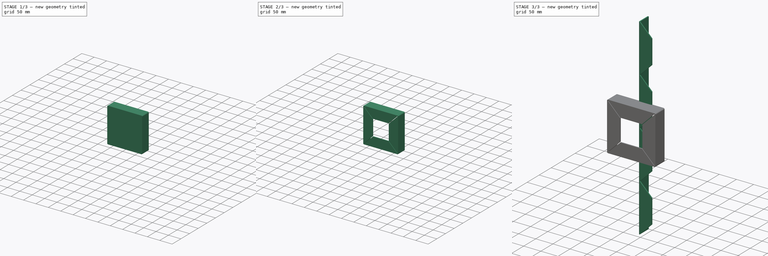
[diagram: build sequence overview — one tinted view per stage of 3, left to right]
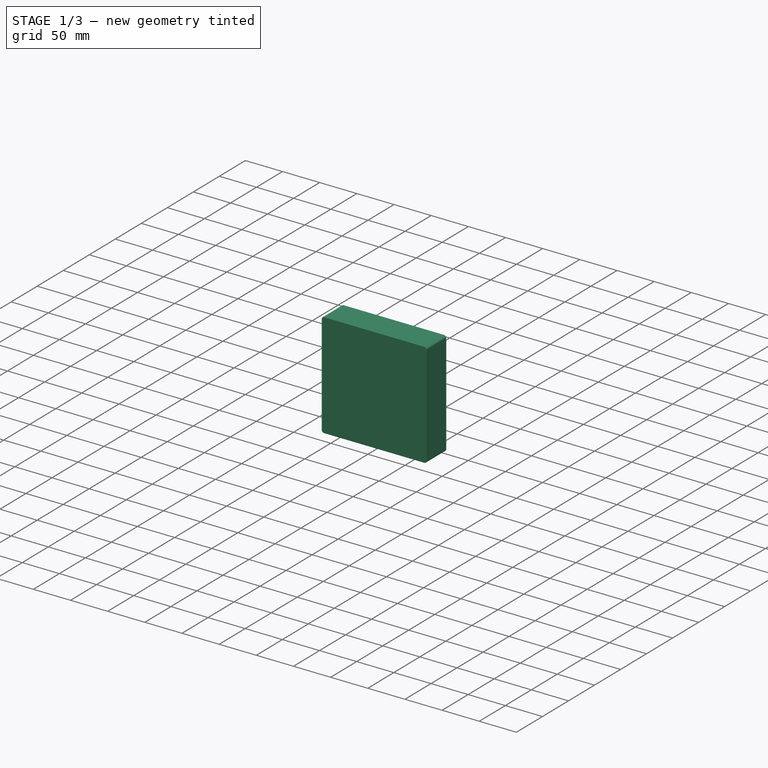
[diagram: stage 1 of 3 — iso view after this stage's code; geometry added in this stage tinted green]
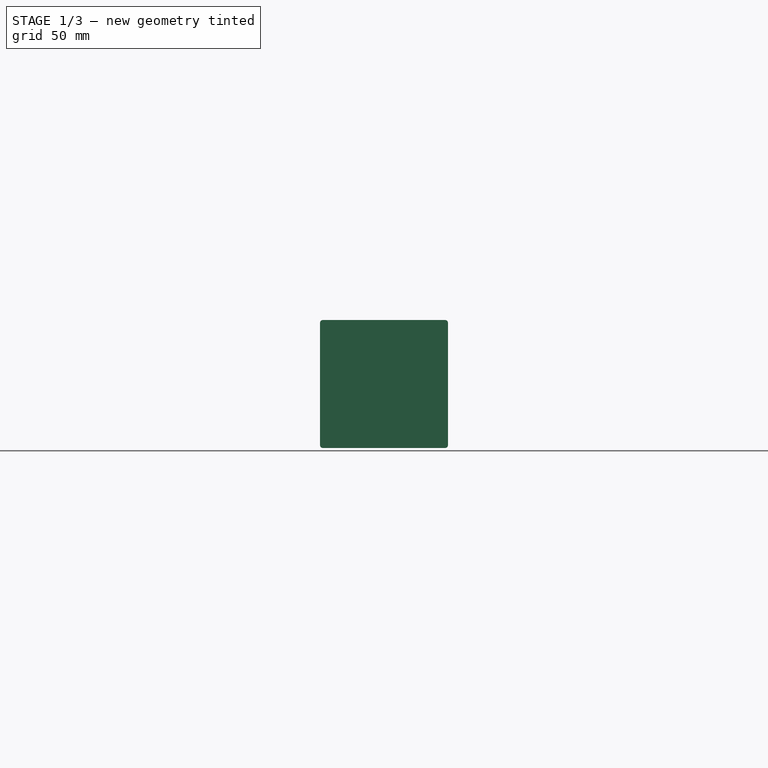
[diagram: stage 1 of 3 — front view after this stage's code; geometry added in this stage tinted green]
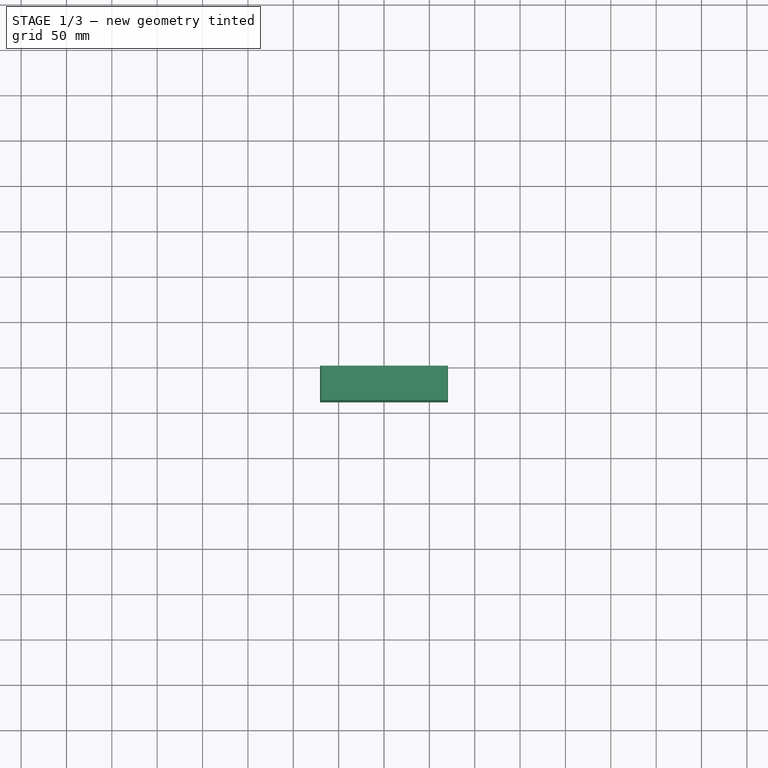
[diagram: stage 1 of 3 — top view after this stage's code; geometry added in this stage tinted green]
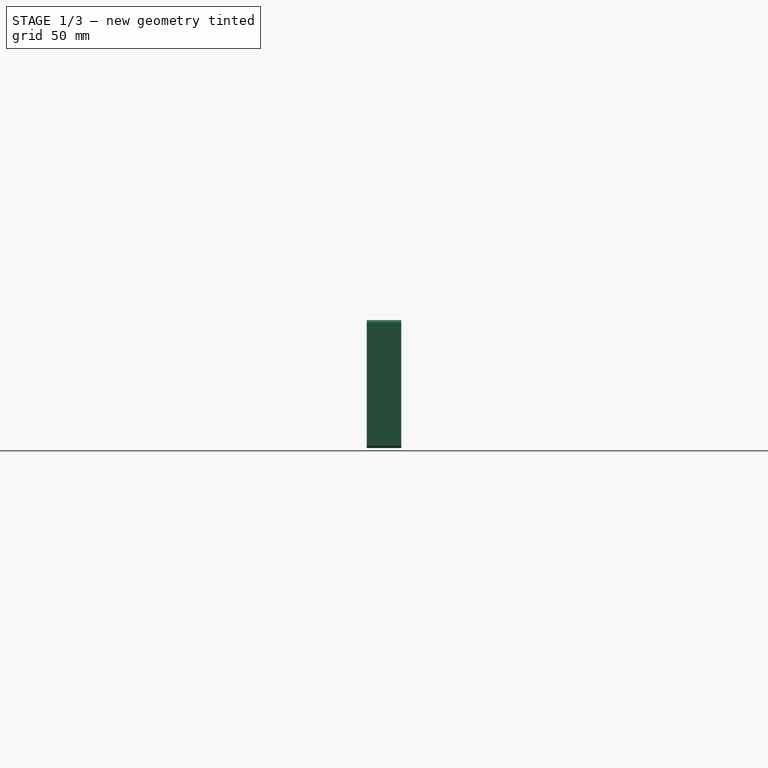
[diagram: stage 1 of 3 — right view after this stage's code; geometry added in this stage tinted green]
FCSTD DOCUMENT  (FreeCAD 0.18R16131 (Git))
Label: CardboardProtection
License: All rights reserved
LicenseURL: http://en.wikipedia.org/wiki/All_rights_reserved
objects: Sketcher::SketchObject×5, PartDesign::Pocket×3, PartDesign::Pad×2, PartDesign::Body×2, PartDesign::PolarPattern×1
note: 18 computed .brp shape members not serialized (recipe doc carries the construction recipe); baked Part::Feature solids carry a one-line shape summary decoded from their .brp

FEATURE [PartDesign::Body] Body
  Group = -> [Sketch,Pad,Sketch001,Pocket]
  Origin = -> Origin
  Placement = pos=(-200,0,0) rot=(0,0,1;0rad)
  Tip = -> Pocket
FEATURE [Sketcher::SketchObject] Sketch002
  MapMode = 5
  Placement = pos=(0,0,0) rot=(1,0,0;1.5708rad)
  Support = -> [XZ_Plane001]
  sketch-geometry (11):
    g0: LineSegment StartX=-67.5 StartY=70.5 StartZ=0 EndX=67.5 EndY=70.5 EndZ=0
    g1: LineSegment StartX=70.5 StartY=67.5 StartZ=0 EndX=70.5 EndY=-67.5 EndZ=0
    g2: LineSegment StartX=67.5 StartY=-70.5 StartZ=0 EndX=-67.5 EndY=-70.5 EndZ=0
    g3: LineSegment StartX=-70.5 StartY=-67.5 StartZ=0 EndX=-70.5 EndY=67.5 EndZ=0
    g4: LineSegment [constr] StartX=-67.5 StartY=67.5 StartZ=0 EndX=0 EndY=0 EndZ=0
    g5: LineSegment [constr] StartX=0 StartY=0 StartZ=0 EndX=67.5 EndY=67.5 EndZ=0
    g6: LineSegment [constr] StartX=0 StartY=0 StartZ=0 EndX=-67.5 EndY=-67.5 EndZ=0
    g7: ArcOfCircle CenterX=-67.5 CenterY=67.5 CenterZ=0 NormalX=0 NormalY=0 NormalZ=1 AngleXU=0 Radius=3 StartAngle=1.5708 EndAngle=3.14159
    g8: ArcOfCircle CenterX=-67.5 CenterY=-67.5 CenterZ=0 NormalX=0 NormalY=0 NormalZ=1 AngleXU=0 Radius=3 StartAngle=3.14159 EndAngle=4.71239
    g9: ArcOfCircle CenterX=67.5 CenterY=-67.5 CenterZ=0 NormalX=0 NormalY=0 NormalZ=1 AngleXU=0 Radius=3 StartAngle=4.71239 EndAngle=6.28319
    g10: ArcOfCircle CenterX=67.5 CenterY=67.5 CenterZ=0 NormalX=0 NormalY=0 NormalZ=1 AngleXU=0 Radius=3 StartAngle=2.98475e-11 EndAngle=1.5708
  constraints (27):
    c: Horizontal(g0)
    c: Horizontal(g2)
    c: Vertical(g1)
    c: Vertical(g3)
    c: Equal(g0,g3)
    c: Coincident(g4,g-1)
    c: Coincident(g5,g-1)
    c: Coincident(g6,g-1)
    c: Equal(g6,g4)
    c: Equal(g4,g5)
    c: Tangent(g0,g7) = 1.5708
    c: Tangent(g3,g7) = 1.5708
    c: Tangent(g3,g8) = 1.5708
    c: Tangent(g2,g8) = 1.5708
    c: Tangent(g2,g9) = 1.5708
    c: Tangent(g1,g9) = 1.5708
    c: Tangent(g1,g10) = 1.5708
    c: Tangent(g0,g10) = 1.5708
    c: Coincident(g4,g7)
    c: Coincident(g5,g10)
    c: Coincident(g6,g8)
    c: Equal(g0,g3)
    c: Equal(g7,g10)
    c: Equal(g10,g9)
    c: Equal(g9,g8)
    c: DistanceX(g7,g10) = 135
    c: Radius(g7) = 3
FEATURE [PartDesign::Pad] Pad001
  Length = 38
  Length2 = 100
  Placement = pos=(0,0,0) rot=(1,0,0;1.5708rad)
  Profile = -> Sketch002
  Type = 0
FEATURE [Sketcher::SketchObject] Sketch003
  MapMode = 5
  Placement = pos=(0,0,0) rot=(-1,0,0;1.5708rad)
  Support = -> [Pad001]
  sketch-geometry (5):
    g0: LineSegment StartX=-67.5 StartY=67.5 StartZ=0 EndX=-67.5 EndY=-67.5 EndZ=0
    g1: LineSegment StartX=-67.5 StartY=-67.5 StartZ=0 EndX=67.5 EndY=-67.5 EndZ=0
    g2: LineSegment StartX=67.5 StartY=-67.5 StartZ=0 EndX=67.5 EndY=67.5 EndZ=0
    g3: LineSegment StartX=67.5 StartY=67.5 StartZ=0 EndX=-67.5 EndY=67.5 EndZ=0
    g4: Circle [constr] CenterX=0 CenterY=0 CenterZ=0 NormalX=0 NormalY=0 NormalZ=1 AngleXU=0 Radius=95.4594
  constraints (14):
    c: Coincident(g0,g1)
    c: Coincident(g1,g2)
    c: Coincident(g2,g3)
    c: Coincident(g3,g0)
    c: Equal(g0,g1)
    c: Equal(g0,g2)
    c: Equal(g0,g3)
    c: PointOnObject(g0,g4)
    c: PointOnObject(g1,g4)
    c: PointOnObject(g2,g4)
    c: PointOnObject(g3,g4)
    c: Coincident(g4,g-1)
    c: Horizontal(g3)
    c: DistanceX(g3,g3) = 135
FEATURE [PartDesign::Pocket] Pocket001
  BaseFeature = -> Pad001
  Length = 35
  Length2 = 100
  Placement = pos=(0,0,0) rot=(1,0,0;1.5708rad)
  Profile = -> Sketch003
  Type = 0
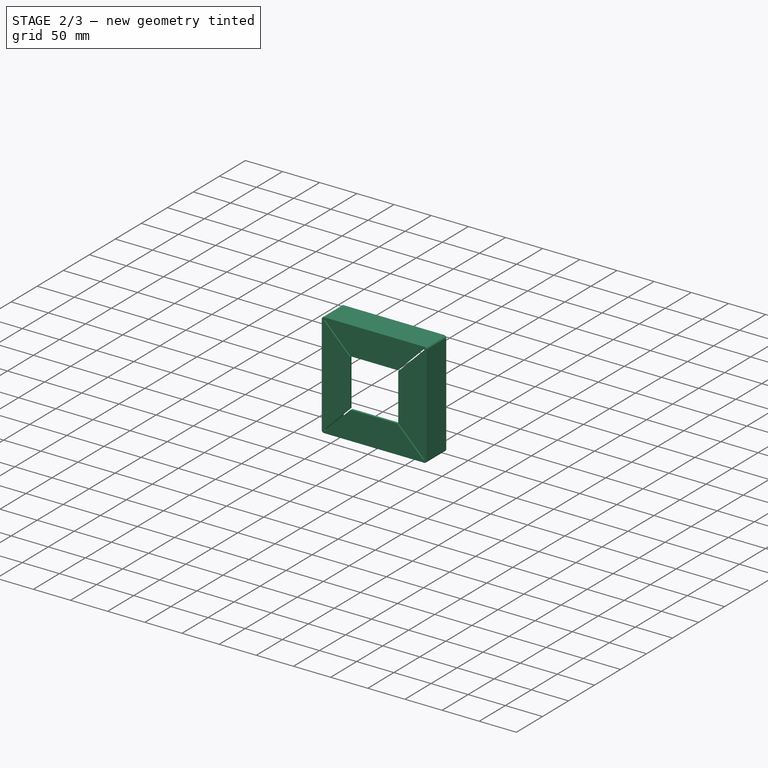
[diagram: stage 2 of 3 — iso view after this stage's code; geometry added in this stage tinted green]
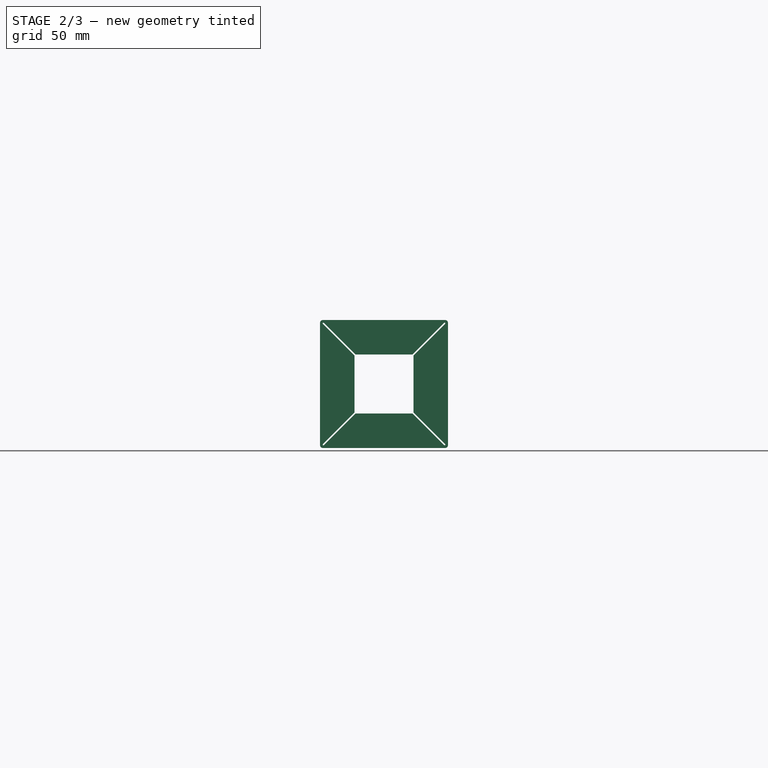
[diagram: stage 2 of 3 — front view after this stage's code; geometry added in this stage tinted green]
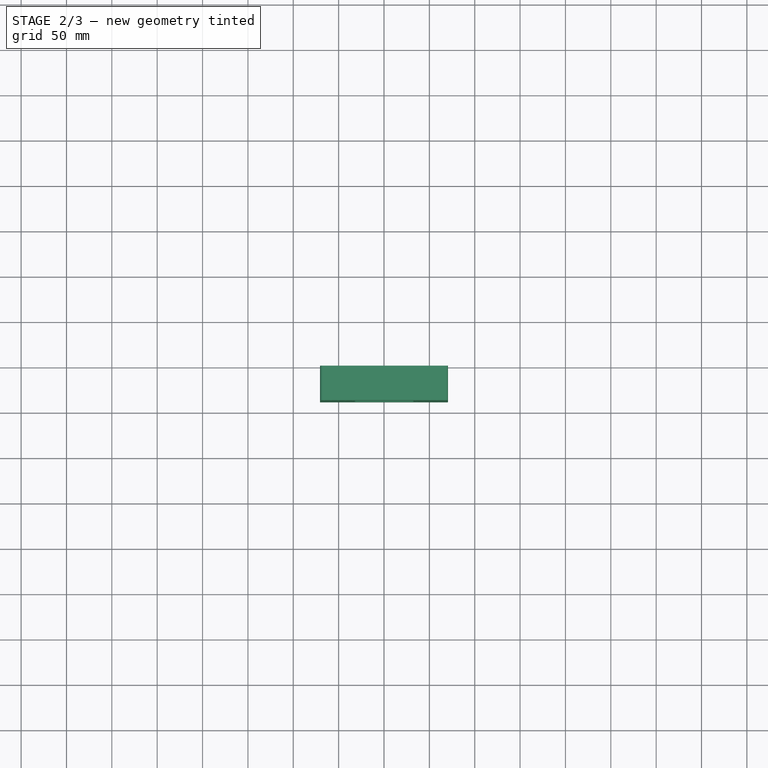
[diagram: stage 2 of 3 — top view after this stage's code; geometry added in this stage tinted green]
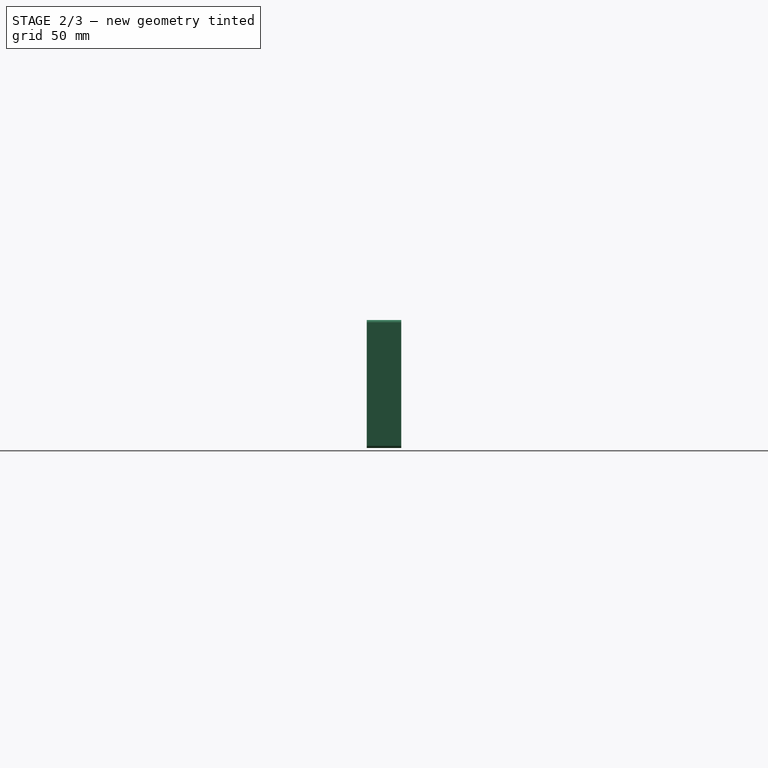
[diagram: stage 2 of 3 — right view after this stage's code; geometry added in this stage tinted green]
FEATURE [Sketcher::SketchObject] Sketch004
  ExternalGeometry = -> [Pocket001]
  MapMode = 5
  Placement = pos=(0,-35,3.12e-14) rot=(-1,0,0;1.5708rad)
  Support = -> [Pocket001]
  sketch-geometry (8):
    g0: LineSegment StartX=0 StartY=0 StartZ=0 EndX=0 EndY=32.5 EndZ=0
    g1: LineSegment StartX=0 StartY=32.5 StartZ=0 EndX=-31.5 EndY=32.5 EndZ=0
    g2: LineSegment StartX=-31.5 StartY=32.5 StartZ=0 EndX=-66.5 EndY=67.5 EndZ=0
    g3: LineSegment StartX=-66.5 StartY=67.5 StartZ=0 EndX=-67.5 EndY=67.5 EndZ=0
    g4: LineSegment StartX=-67.5 StartY=67.5 StartZ=0 EndX=-67.5 EndY=66.5 EndZ=0
    g5: LineSegment StartX=-67.5 StartY=66.5 StartZ=0 EndX=-32.5 EndY=31.5 EndZ=0
    g6: LineSegment StartX=-32.5 StartY=31.5 StartZ=0 EndX=-32.5 EndY=0 EndZ=0
    g7: LineSegment StartX=-32.5 StartY=0 StartZ=0 EndX=0 EndY=0 EndZ=0
  constraints (22):
    c: Coincident(g-1,g0)
    c: PointOnObject(g0,g-2)
    c: Coincident(g0,g1)
    c: Horizontal(g1)
    c: Coincident(g1,g2)
    c: Coincident(g2,g3)
    c: Horizontal(g3)
    c: Coincident(g3,g4)
    c: Vertical(g4)
    c: Coincident(g4,g5)
    c: Coincident(g5,g6)
    c: PointOnObject(g6,g-1)
    c: Coincident(g6,g7)
    c: Coincident(g7,g0)
    c: Vertical(g6)
    c: Equal(g1,g6)
    c: Equal(g2,g5)
    c: Equal(g4,g3)
    c: Coincident(g3,g-3)
    c: DistanceY(g0,g2) = 35
    c: Angle(g5,g6) = 2.35619
    c: DistanceX(g5,g1) = 1
FEATURE [PartDesign::Pocket] Pocket002
  BaseFeature = -> Pocket001
  Length = 5
  Length2 = 100
  Placement = pos=(0,0,0) rot=(1,0,0;1.5708rad)
  Profile = -> Sketch004
  Type = 0
FEATURE [PartDesign::PolarPattern] PolarPattern
  Angle = 360
  Axis = -> Sketch004 [N_Axis]
  BaseFeature = -> Pocket002
  Occurrences = 4
  Originals = -> [Pocket002]
  Placement = pos=(0,0,0) rot=(1,0,0;1.5708rad)
  Refine = true
FEATURE [PartDesign::Body] Body001
  Group = -> [Sketch002,Pad001,Sketch003,Pocket001,Sketch004,Pocket002,PolarPattern]
  Origin = -> Origin001
  Tip = -> PolarPattern
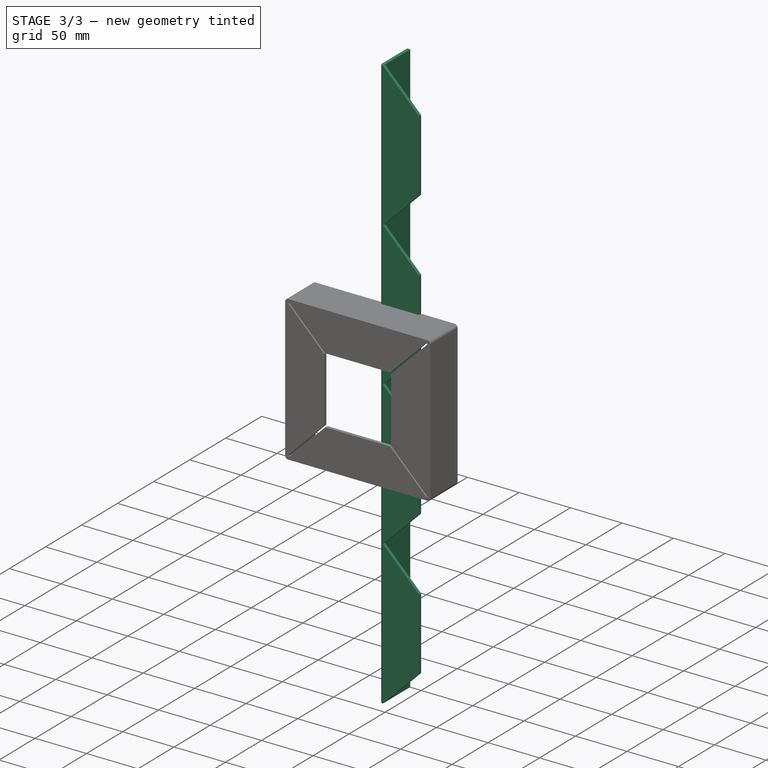
[diagram: stage 3 of 3 — iso view after this stage's code; geometry added in this stage tinted green]
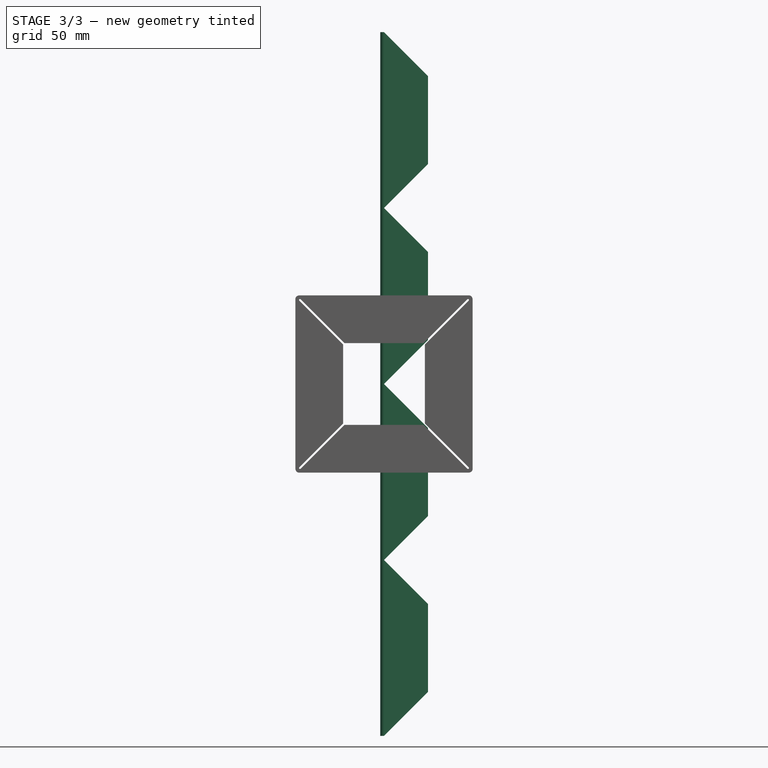
[diagram: stage 3 of 3 — front view after this stage's code; geometry added in this stage tinted green]
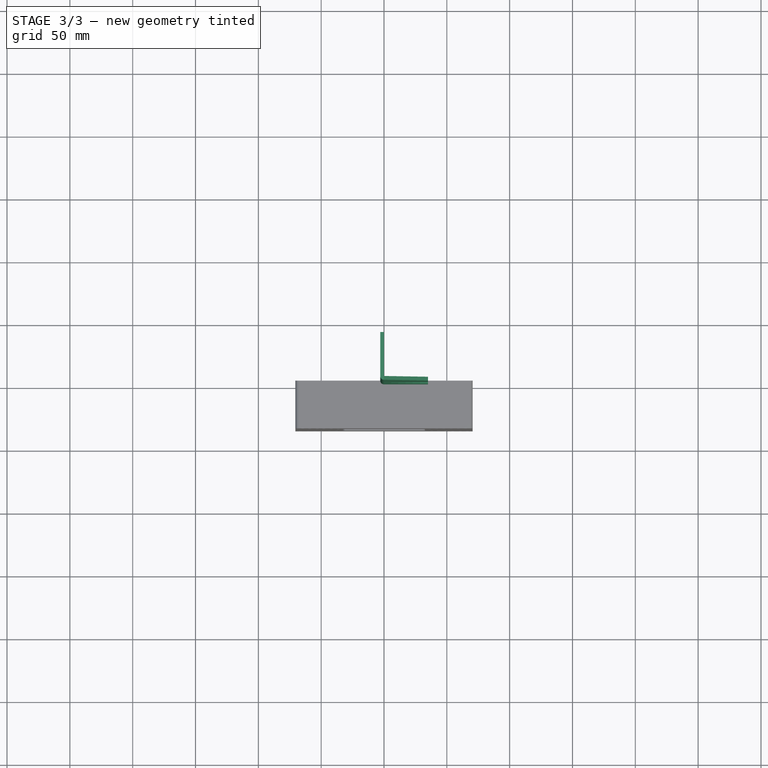
[diagram: stage 3 of 3 — top view after this stage's code; geometry added in this stage tinted green]
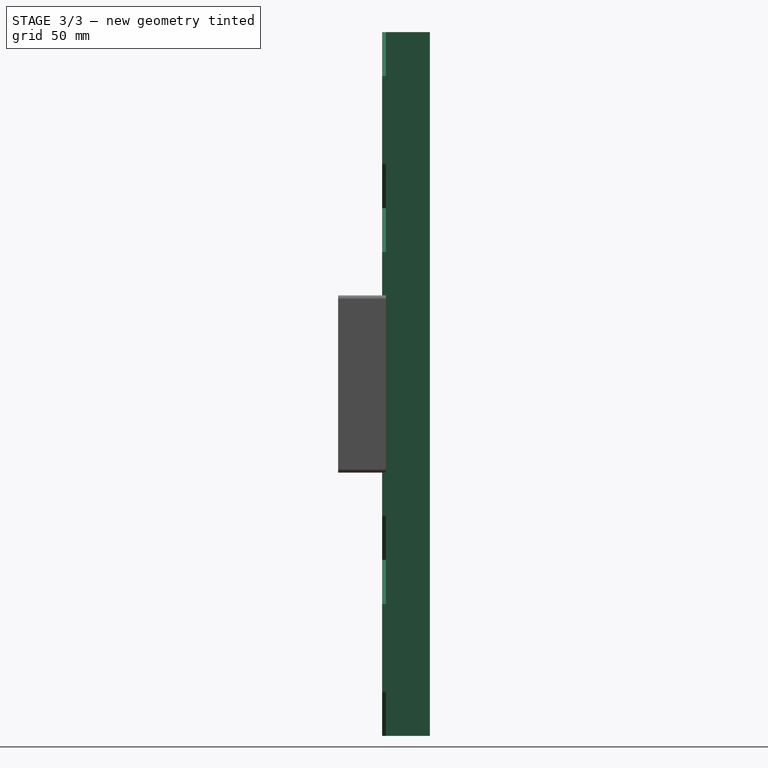
[diagram: stage 3 of 3 — right view after this stage's code; geometry added in this stage tinted green]
FEATURE [Sketcher::SketchObject] Sketch
  MapMode = 5
  Support = -> [XY_Plane]
  sketch-geometry (7):
    g0: LineSegment StartX=0 StartY=0 StartZ=0 EndX=0 EndY=35 EndZ=0
    g1: LineSegment StartX=0 StartY=0 StartZ=0 EndX=35 EndY=0 EndZ=0
    g2: LineSegment StartX=0 StartY=35 StartZ=0 EndX=-3 EndY=35 EndZ=0
    g3: LineSegment StartX=35 StartY=0 StartZ=0 EndX=35 EndY=-3 EndZ=0
    g4: ArcOfCircle CenterX=0 CenterY=0 CenterZ=0 NormalX=0 NormalY=0 NormalZ=1 AngleXU=0 Radius=3 StartAngle=3.14159 EndAngle=4.71239
    g5: LineSegment StartX=-6e-16 StartY=-3 StartZ=0 EndX=35 EndY=-3 EndZ=0
    g6: LineSegment StartX=-3 StartY=35 StartZ=0 EndX=-3 EndY=0 EndZ=0
  constraints (20):
    c: Coincident(g0,g-1)
    c: PointOnObject(g0,g-2)
    c: Coincident(g1,g0)
    c: PointOnObject(g1,g-1)
    c: Equal(g0,g1)
    c: DistanceY(g0,g0) = 35
    c: Coincident(g2,g0)
    c: Coincident(g3,g1)
    c: Vertical(g3)
    c: Horizontal(g2)
    c: Coincident(g4,g0)
    c: PointOnObject(g4,g-1)
    c: PointOnObject(g4,g-2)
    c: Coincident(g5,g4)
    c: Coincident(g5,g3)
    c: Horizontal(g5)
    c: Coincident(g6,g2)
    c: Coincident(g6,g4)
    c: Vertical(g6)
    c: DistanceY(g3,g3) = 3
FEATURE [PartDesign::Pad] Pad
  Length = 560
  Length2 = 100
  Midplane = true
  Profile = -> Sketch
  Type = 0
FEATURE [Sketcher::SketchObject] Sketch001
  ExternalGeometry = -> [Pad]
  MapMode = 5
  Placement = pos=(0,0,0) rot=(0,0.707107,0.707107;3.14159rad)
  Support = -> [Pad]
  sketch-geometry (19):
    g0: LineSegment StartX=-35 StartY=280 StartZ=0 EndX=0 EndY=280 EndZ=0
    g1: LineSegment StartX=0 StartY=280 StartZ=0 EndX=-35 EndY=245 EndZ=0
    g2: LineSegment StartX=-35 StartY=245 StartZ=0 EndX=-35 EndY=280 EndZ=0
    g3: LineSegment StartX=0 StartY=0 StartZ=0 EndX=-35 EndY=35 EndZ=0
    g4: LineSegment StartX=-35 StartY=35 StartZ=0 EndX=-35 EndY=-35 EndZ=0
    g5: LineSegment StartX=-35 StartY=-35 StartZ=0 EndX=0 EndY=0 EndZ=0
    g6: LineSegment StartX=-35 StartY=105 StartZ=0 EndX=0 EndY=140 EndZ=0
    g7: LineSegment StartX=0 StartY=140 StartZ=0 EndX=-35 EndY=175 EndZ=0
    g8: LineSegment StartX=-35 StartY=175 StartZ=0 EndX=-35 EndY=105 EndZ=0
    g9: LineSegment StartX=-35 StartY=-105 StartZ=0 EndX=0 EndY=-140 EndZ=0
    g10: LineSegment StartX=0 StartY=-140 StartZ=0 EndX=-35 EndY=-175 EndZ=0
    g11: LineSegment StartX=-35 StartY=-175 StartZ=0 EndX=-35 EndY=-105 EndZ=0
    g12: LineSegment StartX=-35 StartY=-280 StartZ=0 EndX=-35 EndY=-245 EndZ=0
    g13: LineSegment StartX=-35 StartY=-245 StartZ=0 EndX=0 EndY=-280 EndZ=0
    g14: LineSegment StartX=-35 StartY=-280 StartZ=0 EndX=0 EndY=-280 EndZ=0
    g15: LineSegment [constr] StartX=0 StartY=140 StartZ=0 EndX=-35 EndY=245 EndZ=0
    g16: LineSegment [constr] StartX=0 StartY=140 StartZ=0 EndX=-35 EndY=35 EndZ=0
    g17: LineSegment [constr] StartX=-35 StartY=-35 StartZ=0 EndX=0 EndY=-140 EndZ=0
    g18: LineSegment [constr] StartX=0 StartY=-140 StartZ=0 EndX=-35 EndY=-245 EndZ=0
  constraints (50):
    c: Coincident(g0,g-3)
    c: PointOnObject(g0,g-2)
    c: Horizontal(g0)
    c: Coincident(g1,g0)
    c: Coincident(g2,g1)
    c: Coincident(g2,g0)
    c: Vertical(g2)
    c: Equal(g2,g0)
    c: Coincident(g3,g-1)
    c: PointOnObject(g3,g-3)
    c: Coincident(g4,g3)
    c: PointOnObject(g4,g-3)
    c: Coincident(g5,g4)
    c: Coincident(g5,g3)
    c: Angle(g-1,g3) = 2.35619
    c: Equal(g5,g3)
    c: PointOnObject(g6,g-3)
    c: PointOnObject(g6,g-2)
    c: Coincident(g7,g6)
    c: PointOnObject(g7,g-3)
    c: Equal(g7,g6)
    c: Equal(g6,g3)
    c: Coincident(g8,g7)
    c: Coincident(g8,g6)
    c: PointOnObject(g9,g-3)
    c: PointOnObject(g9,g-2)
    c: Coincident(g10,g9)
    c: PointOnObject(g10,g-3)
    c: Coincident(g11,g10)
    c: Coincident(g11,g9)
    c: Equal(g10,g9)
    c: Equal(g9,g5)
    c: Coincident(g12,g-3)
    c: Coincident(g13,g12)
    c: PointOnObject(g13,g-2)
    c: Coincident(g14,g12)
    c: Coincident(g14,g13)
    c: Horizontal(g14)
    c: Vertical(g12)
    c: Equal(g13,g10)
    c: Coincident(g15,g6)
    c: Coincident(g15,g1)
    c: Coincident(g16,g6)
    c: Coincident(g16,g3)
    c: Coincident(g17,g4)
    c: Coincident(g17,g9)
    c: Coincident(g18,g9)
    c: Coincident(g18,g12)
    c: Equal(g16,g15)
    c: Equal(g17,g18)
FEATURE [PartDesign::Pocket] Pocket
  BaseFeature = -> Pad
  Length = 5
  Length2 = 100
  Profile = -> Sketch001
  Type = 0
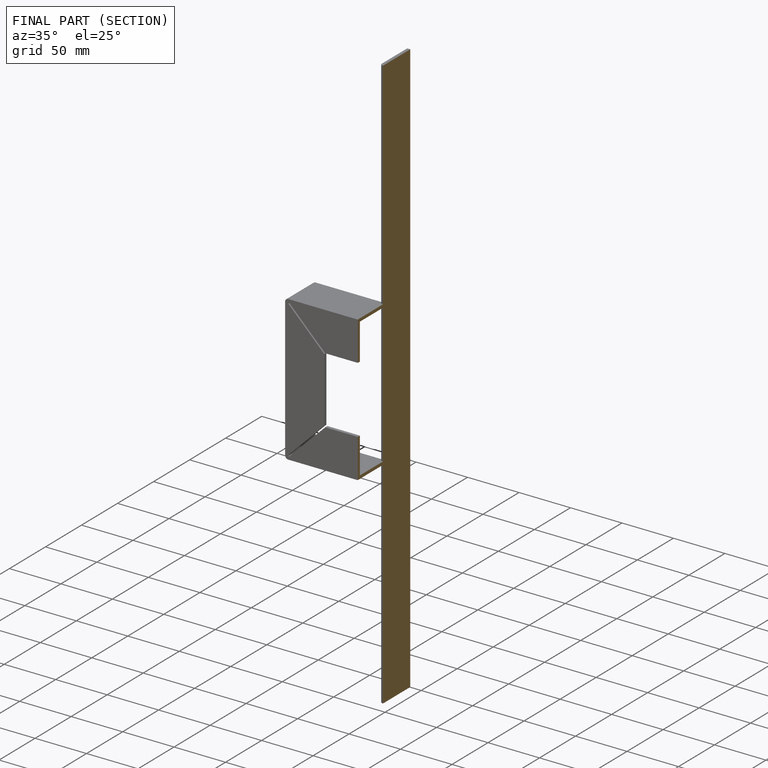
[diagram: finished part — half-section view (interior)]
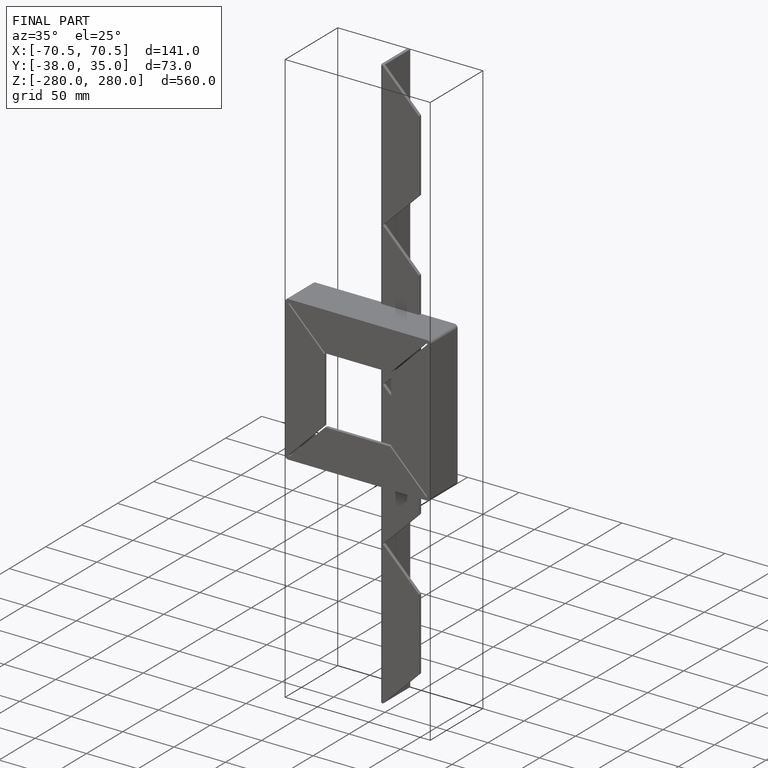
[diagram: finished part — iso view with bounding-box wireframe]
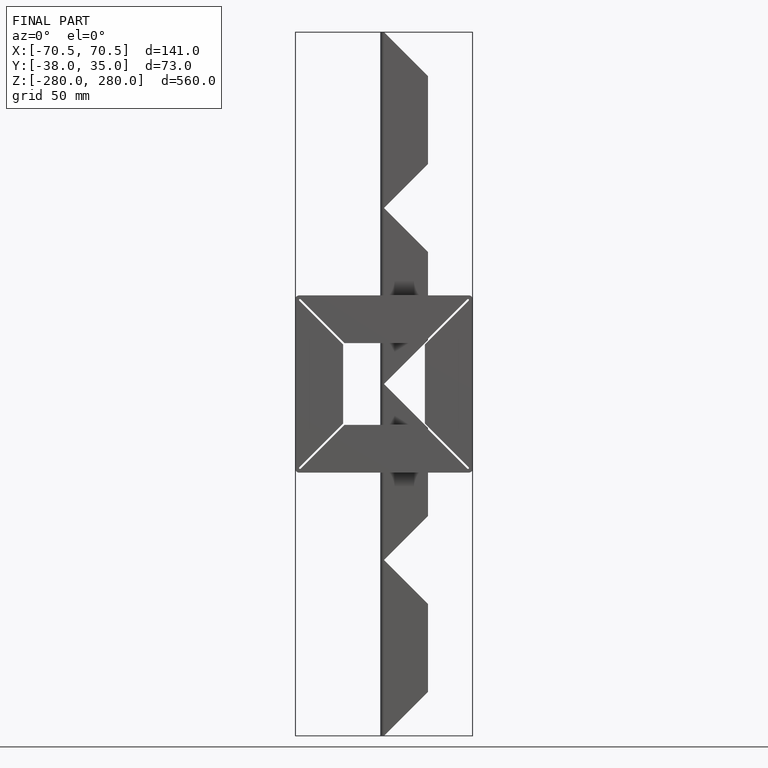
[diagram: finished part — front view with bounding-box wireframe]
